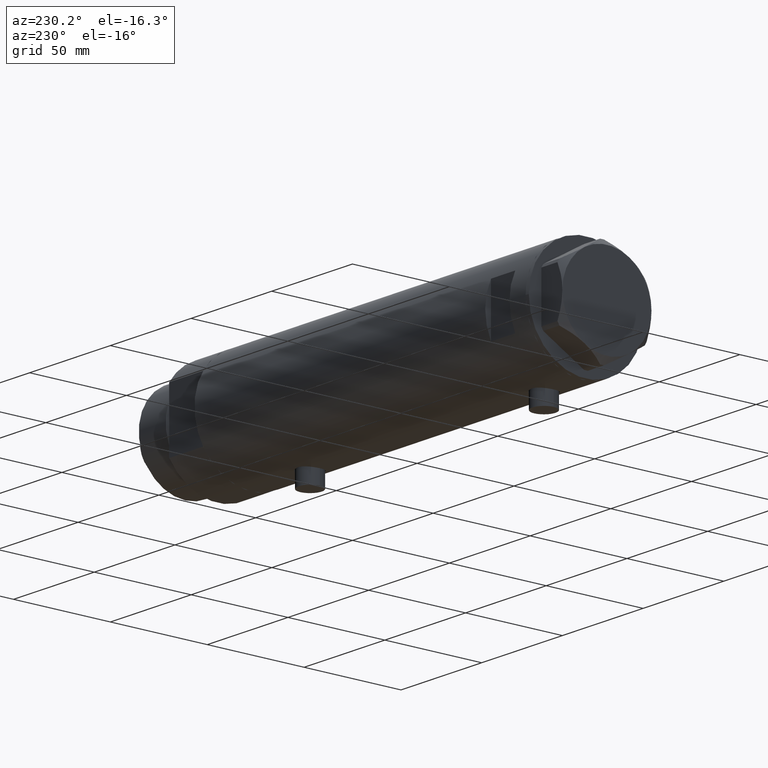
[diagram: clean part render]
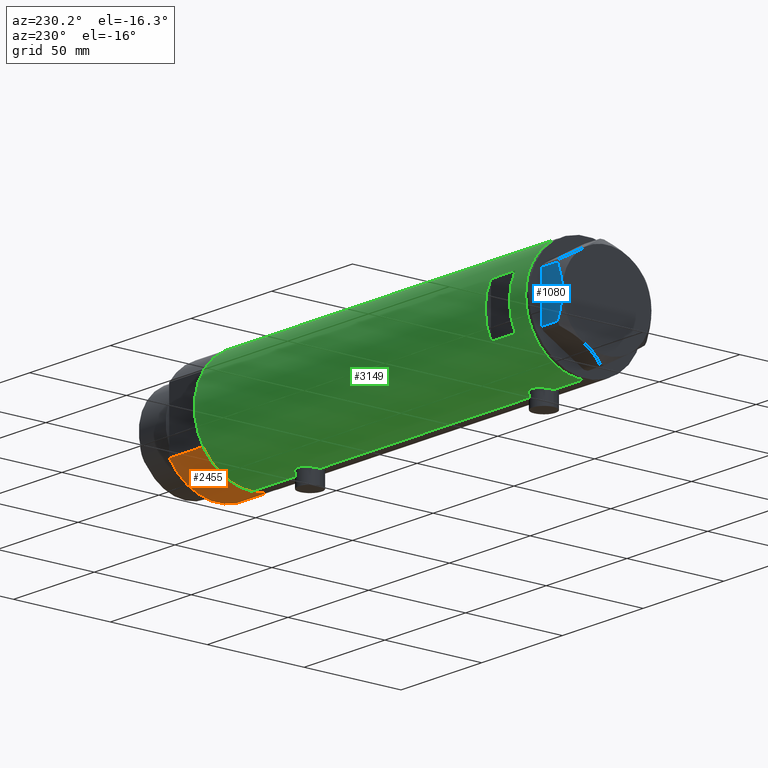
[diagram: same view with three faces highlighted in distinct colors, each labeled with its STEP entity id]
A machine part, auxiliary view with three faces highlighted in distinct colors.
Their STEP definitions:

[orange] entity #2455 — the highlighted cylindrical surface (partial cylindrical patch) has radius 29.5 mm, axis along (-1, -0, 0).
#315 = CARTESIAN_POINT ( 'NONE',  ( 0.000000000000000000, 0.000000000000000000, 21.00000000000000000 ) ) ;
#384 = VERTEX_POINT ( 'NONE', #1085 ) ;
#450 = CARTESIAN_POINT ( 'NONE',  ( 15.66045976336583401, -25.00000000000000000, 0.000000000000000000 ) ) ;
#564 = EDGE_LOOP ( 'NONE', ( #2536, #4182, #4021, #1690 ) ) ;
#572 = VERTEX_POINT ( 'NONE', #2448 ) ;
#680 = VECTOR ( 'NONE', #1843, 1000.000000000000000 ) ;
#830 = VECTOR ( 'NONE', #2635, 1000.000000000000000 ) ;
#859 = CARTESIAN_POINT ( 'NONE',  ( 15.66045976336583045, 24.99999999999999645, 20.99999999999999645 ) ) ;
#877 = EDGE_CURVE ( 'NONE', #384, #1288, #1164, .T. ) ;
#940 = CARTESIAN_POINT ( 'NONE',  ( 0.000000000000000000, 0.000000000000000000, 21.00000000000000000 ) ) ;
#1085 = CARTESIAN_POINT ( 'NONE',  ( 15.66045976336583401, -25.00000000000000000, 0.000000000000000000 ) ) ;
#1164 = LINE ( 'NONE', #450, #680 ) ;
#1198 = CIRCLE ( 'NONE', #1783, 29.50000000000000355 ) ;
#1235 = EDGE_CURVE ( 'NONE', #572, #2620, #4053, .T. ) ;
#1288 = VERTEX_POINT ( 'NONE', #3491 ) ;
#1325 = DIRECTION ( 'NONE',  ( 1.000000000000000000, 0.000000000000000000, 0.000000000000000000 ) ) ;
#1690 = ORIENTED_EDGE ( 'NONE', *, *, #1235, .T. ) ;
#1696 = DIRECTION ( 'NONE',  ( -0.000000000000000000, -0.000000000000000000, -1.000000000000000000 ) ) ;
#1714 = DIRECTION ( 'NONE',  ( 0.000000000000000000, 0.000000000000000000, 1.000000000000000000 ) ) ;
#1783 = AXIS2_PLACEMENT_3D ( 'NONE', #940, #1714, #2005 ) ;
#1843 = DIRECTION ( 'NONE',  ( -0.000000000000000000, -0.000000000000000000, 1.000000000000000000 ) ) ;
#2005 = DIRECTION ( 'NONE',  ( 1.000000000000000000, 0.000000000000000000, 0.000000000000000000 ) ) ;
#2032 = FACE_OUTER_BOUND ( 'NONE', #564, .T. ) ;
#2309 = EDGE_CURVE ( 'NONE', #384, #572, #3868, .T. ) ;
#2323 = CARTESIAN_POINT ( 'NONE',  ( 15.66045976336583401, 25.00000000000000000, 0.000000000000000000 ) ) ;
#2448 = CARTESIAN_POINT ( 'NONE',  ( 15.66045976336582690, 25.00000000000000000, 0.000000000000000000 ) ) ;
#2455 = ADVANCED_FACE ( 'NONE', ( #2032 ), #3426, .T. ) ;
#2536 = ORIENTED_EDGE ( 'NONE', *, *, #3466, .F. ) ;
#2620 = VERTEX_POINT ( 'NONE', #859 ) ;
#2635 = DIRECTION ( 'NONE',  ( -0.000000000000000000, -0.000000000000000000, 1.000000000000000000 ) ) ;
#3046 = CARTESIAN_POINT ( 'NONE',  ( 0.000000000000000000, 0.000000000000000000, 0.000000000000000000 ) ) ;
#3426 = CYLINDRICAL_SURFACE ( 'NONE', #4153, 29.50000000000000355 ) ;
#3448 = DIRECTION ( 'NONE',  ( -1.000000000000000000, 0.000000000000000000, 0.000000000000000000 ) ) ;
#3466 = EDGE_CURVE ( 'NONE', #1288, #2620, #1198, .T. ) ;
#3491 = CARTESIAN_POINT ( 'NONE',  ( 15.66045976336583045, -25.00000000000000000, 21.00000000000000355 ) ) ;
#3868 = CIRCLE ( 'NONE', #4290, 29.50000000000000355 ) ;
#4021 = ORIENTED_EDGE ( 'NONE', *, *, #2309, .T. ) ;
#4053 = LINE ( 'NONE', #2323, #830 ) ;
#4153 = AXIS2_PLACEMENT_3D ( 'NONE', #315, #1696, #3448 ) ;
#4182 = ORIENTED_EDGE ( 'NONE', *, *, #877, .F. ) ;
#4290 = AXIS2_PLACEMENT_3D ( 'NONE', #3046, #4433, #1325 ) ;
#4433 = DIRECTION ( 'NONE',  ( 0.000000000000000000, 0.000000000000000000, 1.000000000000000000 ) ) ;

[blue] entity #1080 — the highlighted planar face has unit normal (0, -1, 0).
#98 = PLANE ( 'NONE',  #2196 ) ;
#129 = VERTEX_POINT ( 'NONE', #1114 ) ;
#144 = CARTESIAN_POINT ( 'NONE',  ( 22.99999999999995026, 2.373657066004705010E-13, 13.00000000000000000 ) ) ;
#150 = ORIENTED_EDGE ( 'NONE', *, *, #945, .T. ) ;
#161 = CARTESIAN_POINT ( 'NONE',  ( 23.00000000000003197, -8.246028007352199651, 11.57113180864690705 ) ) ;
#272 = CARTESIAN_POINT ( 'NONE',  ( 22.99999999999982236, 12.15905619136166038, 9.983800287807609308 ) ) ;
#338 = CARTESIAN_POINT ( 'NONE',  ( 22.99999999999992539, 2.119709279062088836, 12.90853521217320043 ) ) ;
#390 = ORIENTED_EDGE ( 'NONE', *, *, #3375, .T. ) ;
#394 = VECTOR ( 'NONE', #2729, 1000.000000000000000 ) ;
#471 = CARTESIAN_POINT ( 'NONE',  ( 23.00000000000002132, -7.239756182922042704, 11.89218606342284978 ) ) ;
#485 = CARTESIAN_POINT ( 'NONE',  ( 23.00000000000007461, -12.15905619136117721, 0.000000000000000000 ) ) ;
#585 = LINE ( 'NONE', #4033, #3446 ) ;
#604 = DIRECTION ( 'NONE',  ( 0.000000000000000000, 0.000000000000000000, 1.000000000000000000 ) ) ;
#636 = CARTESIAN_POINT ( 'NONE',  ( 22.99999999999995026, 2.373657066004705010E-13, 13.00000000000000000 ) ) ;
#671 = LINE ( 'NONE', #2123, #1261 ) ;
#705 = ORIENTED_EDGE ( 'NONE', *, *, #1073, .F. ) ;
#777 = CARTESIAN_POINT ( 'NONE',  ( 22.99999999999995026, 2.373657066004705010E-13, 13.00000000000000000 ) ) ;
#865 = VERTEX_POINT ( 'NONE', #777 ) ;
#945 = EDGE_CURVE ( 'NONE', #1837, #129, #671, .T. ) ;
#1066 = CARTESIAN_POINT ( 'NONE',  ( 22.99999999999986500, 8.252113629125442884, 11.58164206268022056 ) ) ;
#1073 = EDGE_CURVE ( 'NONE', #1320, #865, #3781, .T. ) ;
#1080 = ADVANCED_FACE ( 'NONE', ( #1453 ), #98, .F. ) ;
#1114 = CARTESIAN_POINT ( 'NONE',  ( 22.99999999999982236, 12.15905619136166571, 0.000000000000000000 ) ) ;
#1129 = EDGE_CURVE ( 'NONE', #129, #2223, #585, .T. ) ;
#1159 = CARTESIAN_POINT ( 'NONE',  ( 23.00000000000007461, -12.15905619136117544, 9.983800287807614637 ) ) ;
#1261 = VECTOR ( 'NONE', #4128, 1000.000000000000000 ) ;
#1313 = EDGE_LOOP ( 'NONE', ( #705, #390, #150, #3099, #2242 ) ) ;
#1320 = VERTEX_POINT ( 'NONE', #2725 ) ;
#1326 = CARTESIAN_POINT ( 'NONE',  ( 22.99999999999985434, 9.734726261263476843, 11.02892470009566139 ) ) ;
#1361 = LINE ( 'NONE', #2678, #394 ) ;
#1453 = FACE_OUTER_BOUND ( 'NONE', #1313, .T. ) ;
#1507 = CARTESIAN_POINT ( 'NONE',  ( 23.00000000000004263, -8.748091966971225375, 11.39681897828457124 ) ) ;
#1538 = CARTESIAN_POINT ( 'NONE',  ( 23.00000000000001421, -6.734330413511261604, 12.03938974125266448 ) ) ;
#1657 = CARTESIAN_POINT ( 'NONE',  ( 22.99999999999992184, 2.643615312305319875, 12.85430456063626714 ) ) ;
#1677 = CARTESIAN_POINT ( 'NONE',  ( 22.99999999999993960, 1.063773509315898647, 12.98143808360683060 ) ) ;
#1724 = CARTESIAN_POINT ( 'NONE',  ( 22.99999999999982236, 12.15905619136166038, 9.983800287807609308 ) ) ;
#1746 = CARTESIAN_POINT ( 'NONE',  ( 22.99999999999982947, 11.68282849742354301, 10.20637235269540888 ) ) ;
#1837 = VERTEX_POINT ( 'NONE', #485 ) ;
#1909 = B_SPLINE_CURVE_WITH_KNOTS ( 'NONE', 3,
 ( #636, #2017, #1677, #338, #1657, #3472, #2033, #4434, #1066, #1326, #2080, #3449, #1746, #1724 ),
 .UNSPECIFIED., .F., .F.,
 ( 4, 2, 2, 2, 2, 2, 4 ),
 ( 0.04777139595992689614, 0.04934380568070229761, 0.05091621540147769215, 0.05406103484302849510, 0.05720585428457929111, 0.05877826400535468565, 0.06035067372613008713 ),
 .UNSPECIFIED. ) ;
#2017 = CARTESIAN_POINT ( 'NONE',  ( 22.99999999999994671, 0.5295934231899315225, 13.00000000000009770 ) ) ;
#2033 = CARTESIAN_POINT ( 'NONE',  ( 22.99999999999990052, 5.228918809624289565, 12.43333703384985256 ) ) ;
#2080 = CARTESIAN_POINT ( 'NONE',  ( 22.99999999999984723, 10.22738952213813590, 10.83247031367476687 ) ) ;
#2123 = CARTESIAN_POINT ( 'NONE',  ( 23.00000000000008527, -13.27905619136115867, 0.000000000000000000 ) ) ;
#2168 = CARTESIAN_POINT ( 'NONE',  ( 22.99999999999999289, -4.194757081058820170, 12.70300035152520479 ) ) ;
#2196 = AXIS2_PLACEMENT_3D ( 'NONE', #2824, #2847, #4236 ) ;
#2223 = VERTEX_POINT ( 'NONE', #272 ) ;
#2242 = ORIENTED_EDGE ( 'NONE', *, *, #4067, .F. ) ;
#2678 = CARTESIAN_POINT ( 'NONE',  ( 23.00000000000007461, -12.15905619136117721, 13.00000000000000000 ) ) ;
#2725 = CARTESIAN_POINT ( 'NONE',  ( 23.00000000000007461, -12.15905619136117544, 9.983800287807614637 ) ) ;
#2729 = DIRECTION ( 'NONE',  ( 0.000000000000000000, 0.000000000000000000, -1.000000000000000000 ) ) ;
#2824 = CARTESIAN_POINT ( 'NONE',  ( 23.00000000000008527, -13.27905619136115867, 13.00000000000000000 ) ) ;
#2847 = DIRECTION ( 'NONE',  ( -1.000000000000000000, -1.032024811306395780E-14, 0.000000000000000000 ) ) ;
#2908 = CARTESIAN_POINT ( 'NONE',  ( 22.99999999999996447, -2.122900714017910584, 13.00000000000008882 ) ) ;
#3099 = ORIENTED_EDGE ( 'NONE', *, *, #1129, .T. ) ;
#3265 = CARTESIAN_POINT ( 'NONE',  ( 23.00000000000006750, -11.20825071633899483, 10.42817330637845608 ) ) ;
#3375 = EDGE_CURVE ( 'NONE', #1320, #1837, #1361, .T. ) ;
#3446 = VECTOR ( 'NONE', #604, 1000.000000000000000 ) ;
#3449 = CARTESIAN_POINT ( 'NONE',  ( 22.99999999999984368, 11.20155944044835472, 10.42110268263274264 ) ) ;
#3472 = CARTESIAN_POINT ( 'NONE',  ( 22.99999999999990763, 4.203926054642130872, 12.64168122312251263 ) ) ;
#3781 = B_SPLINE_CURVE_WITH_KNOTS ( 'NONE', 3,
 ( #1159, #3265, #3918, #1507, #161, #471, #1538, #2168, #2908, #144 ),
 .UNSPECIFIED., .F., .F.,
 ( 4, 2, 2, 2, 4 ),
 ( 0.03516523594057416324, 0.03831677594541234994, 0.03989254594783143981, 0.04146831595025052969, 0.04777139595992689614 ),
 .UNSPECIFIED. ) ;
#3918 = CARTESIAN_POINT ( 'NONE',  ( 23.00000000000005684, -10.23890159976106240, 10.84081242829091529 ) ) ;
#4033 = CARTESIAN_POINT ( 'NONE',  ( 22.99999999999982236, 12.15905619136166571, 13.00000000000000000 ) ) ;
#4067 = EDGE_CURVE ( 'NONE', #865, #2223, #1909, .T. ) ;
#4128 = DIRECTION ( 'NONE',  ( -1.032024811306395780E-14, 1.000000000000000000, 0.000000000000000000 ) ) ;
#4236 = DIRECTION ( 'NONE',  ( 1.032024811306395780E-14, -1.000000000000000000, 0.000000000000000000 ) ) ;
#4434 = CARTESIAN_POINT ( 'NONE',  ( 22.99999999999987210, 7.253003311474555126, 11.90327681034763430 ) ) ;

[green] entity #3149 — the highlighted cylindrical surface (partial cylindrical patch) has radius 29.5 mm, axis along (-1, -0, 0).
#12 = CARTESIAN_POINT ( 'NONE',  ( -29.49128627113591250, 0.8212788586050389084, -60.09076875091125913 ) ) ;
#31 = CARTESIAN_POINT ( 'NONE',  ( -29.50000000000001066, 0.4142160563134688056, -60.05000000000000426 ) ) ;
#46 = AXIS2_PLACEMENT_3D ( 'NONE', #335, #3469, #2700 ) ;
#47 = CARTESIAN_POINT ( 'NONE',  ( -29.50000000000000355, 3.612708057484692393E-15, -102.5999999999999943 ) ) ;
#56 = CARTESIAN_POINT ( 'NONE',  ( -29.25454443288368722, 3.812919888526645096, -61.33102620819089168 ) ) ;
#58 = CARTESIAN_POINT ( 'NONE',  ( 29.50000000000000355, -1.919926123348039602E-15, -70.89999999999999147 ) ) ;
#63 = CARTESIAN_POINT ( 'NONE',  ( 29.08204711695422162, 4.951923910293533737, 76.46183978405699122 ) ) ;
#65 = VERTEX_POINT ( 'NONE', #2863 ) ;
#69 = CARTESIAN_POINT ( 'NONE',  ( -29.50000000000000355, 3.612706708236066082E-15, 72.34999999999999432 ) ) ;
#81 = CYLINDRICAL_SURFACE ( 'NONE', #2563, 29.50000000000000355 ) ;
#82 = ORIENTED_EDGE ( 'NONE', *, *, #963, .F. ) ;
#106 = EDGE_CURVE ( 'NONE', #3203, #3604, #3562, .T. ) ;
#107 = ORIENTED_EDGE ( 'NONE', *, *, #886, .F. ) ;
#146 = CARTESIAN_POINT ( 'NONE',  ( 29.38138226830142941, 2.652609128011945039, -70.41954601959669446 ) ) ;
#163 = CARTESIAN_POINT ( 'NONE',  ( 29.08308069045667565, 4.954707331652131508, -57.74826371623223764 ) ) ;
#188 = CARTESIAN_POINT ( 'NONE',  ( 28.62953349941190595, 7.116010646391501382, 84.51979460923098486 ) ) ;
#192 = EDGE_CURVE ( 'NONE', #4181, #426, #3943, .T. ) ;
#208 = CARTESIAN_POINT ( 'NONE',  ( -28.99931529802531571, 5.412890550536858747, 75.46870800944782331 ) ) ;
#218 = LINE ( 'NONE', #3616, #2263 ) ;
#230 = CARTESIAN_POINT ( 'NONE',  ( 28.54350045195476326, 7.451747857568912004, 81.11733997124495943 ) ) ;
#231 = CARTESIAN_POINT ( 'NONE',  ( -29.50000000000000355, 0.2042768310961497746, 72.34999999999999432 ) ) ;
#253 = CARTESIAN_POINT ( 'NONE',  ( -28.83925158138407596, 6.209208576703536764, 77.77801617131194689 ) ) ;
#258 = CIRCLE ( 'NONE', #620, 29.50000000000000355 ) ;
#266 = EDGE_CURVE ( 'NONE', #516, #3559, #2093, .T. ) ;
#279 = CARTESIAN_POINT ( 'NONE',  ( 28.86328010881651807, 6.097564286278117862, 86.47368290922693745 ) ) ;
#280 = CARTESIAN_POINT ( 'NONE',  ( -28.94521404191312541, 5.694822755760260868, 76.01666953598657983 ) ) ;
#301 = CARTESIAN_POINT ( 'NONE',  ( -28.96085629491408753, 5.616414220648533018, 81.37199639590008360 ) ) ;
#320 = VECTOR ( 'NONE', #3672, 1000.000000000000000 ) ;
#335 = CARTESIAN_POINT ( 'NONE',  ( 0.000000000000000000, 0.000000000000000000, 77.60000000000007958 ) ) ;
#340 = CARTESIAN_POINT ( 'NONE',  ( 29.50000000000000355, -1.919926123348039602E-15, -70.89999999999999147 ) ) ;
#342 = CARTESIAN_POINT ( 'NONE',  ( -28.83028740688047975, 6.250162243045993549, -66.70646065908374567 ) ) ;
#356 = DIRECTION ( 'NONE',  ( 0.000000000000000000, 0.000000000000000000, 1.000000000000000000 ) ) ;
#363 = CARTESIAN_POINT ( 'NONE',  ( -29.38727827406290416, 2.583363936682816941, -71.99478026128666386 ) ) ;
#364 = CARTESIAN_POINT ( 'NONE',  ( 29.50000000000000355, 0.000000000000000000, -102.5999999999999943 ) ) ;
#381 = CARTESIAN_POINT ( 'NONE',  ( -28.86473101544357434, 6.089252369705498324, -64.87667050833967153 ) ) ;
#404 = CARTESIAN_POINT ( 'NONE',  ( -29.21113960567727830, 4.128622307952528381, -71.01014533383553839 ) ) ;
#410 = CARTESIAN_POINT ( 'NONE',  ( 29.14416130131008131, 4.572185141625607407, 76.14974588234440489 ) ) ;
#426 = VERTEX_POINT ( 'NONE', #986 ) ;
#433 = B_SPLINE_CURVE_WITH_KNOTS ( 'NONE', 3,
 ( #1749, #31, #12, #1703, #1404, #2382, #722, #2102, #1333, #56, #701, #1002, #2776, #3100, #1043, #2038, #1091, #1382, #381, #4468, #2752, #342, #1432, #3762, #4107, #3516, #2058, #4438, #3475, #2801, #2464, #404, #3430, #1799, #3078, #1364, #363, #1021, #3878, #3968, #2514, #1140, #446, #3903 ),
 .UNSPECIFIED., .F., .F.,
 ( 4, 2, 2, 2, 2, 2, 2, 2, 2, 2, 2, 2, 2, 2, 2, 2, 2, 2, 2, 2, 2, 4 ),
 ( 1.544559621223092988E-18, 0.001224749128302355305, 0.001837123692453529597, 0.002449498256604704972, 0.003674247384907053989, 0.004898996513209403873, 0.006123745641511752456, 0.007348494769814101907, 0.007960869333965277933, 0.008573243898116452225, 0.009797993026418759174, 0.01102274215472106959, 0.01224749128302338001, 0.01285986584717451614, 0.01347224041132565053, 0.01469698953962795575, 0.01592173866793026096, 0.01653411323208141270, 0.01714648779623256791, 0.01837123692453485752, 0.01898361148868599538, 0.01959598605283713324 ),
 .UNSPECIFIED. ) ;
#439 = ORIENTED_EDGE ( 'NONE', *, *, #1342, .T. ) ;
#446 = CARTESIAN_POINT ( 'NONE',  ( -29.50000000000000711, 0.2042768310961464717, -72.55000000000001137 ) ) ;
#465 = VERTEX_POINT ( 'NONE', #488 ) ;
#474 = CARTESIAN_POINT ( 'NONE',  ( 28.95590528945748687, 5.641861744747099117, -58.45235088071115115 ) ) ;
#488 = CARTESIAN_POINT ( 'NONE',  ( 29.50000000000000355, -2.245054425791785664E-15, 74.59999999999996589 ) ) ;
#496 = CARTESIAN_POINT ( 'NONE',  ( 28.77473834757381965, 6.507156404236271285, -67.16162684060294907 ) ) ;
#509 = DIRECTION ( 'NONE',  ( 0.000000000000000000, 0.000000000000000000, 1.000000000000000000 ) ) ;
#516 = VERTEX_POINT ( 'NONE', #1216 ) ;
#544 = ORIENTED_EDGE ( 'NONE', *, *, #4138, .F. ) ;
#546 = CARTESIAN_POINT ( 'NONE',  ( -29.46640581083894261, 1.421634556901802293, 84.68958891089420149 ) ) ;
#570 = CARTESIAN_POINT ( 'NONE',  ( 28.58083212642745607, 7.306745240314161727, 80.39046330563790832 ) ) ;
#571 = CARTESIAN_POINT ( 'NONE',  ( -28.89816269917384872, 5.930588606439751054, 76.58529684457830911 ) ) ;
#590 = CARTESIAN_POINT ( 'NONE',  ( -29.49128627113591250, 0.8212788586050364659, 84.80923124908873945 ) ) ;
#593 = VERTEX_POINT ( 'NONE', #4149 ) ;
#613 = CARTESIAN_POINT ( 'NONE',  ( -29.21045586191521082, 4.133246019522336390, 83.30573901566482675 ) ) ;
#620 = AXIS2_PLACEMENT_3D ( 'NONE', #4066, #1712, #962 ) ;
#639 = CARTESIAN_POINT ( 'NONE',  ( -28.87539346372184923, 6.038655803256915533, 80.22452664083073159 ) ) ;
#660 = CARTESIAN_POINT ( 'NONE',  ( 28.95615051861771860, 5.649234316505064690, 77.14284581253269835 ) ) ;
#701 = CARTESIAN_POINT ( 'NONE',  ( -29.21045586191520727, 4.133246019522343495, -61.59426098433517183 ) ) ;
#703 = B_SPLINE_CURVE_WITH_KNOTS ( 'NONE', 3,
 ( #58, #1434, #2487, #3882, #2910, #3245, #146, #2890, #3628, #3217, #1142, #1903, #3267, #4296, #1508, #496, #1178, #4278, #2515, #1819, #4261, #1477, #793, #2170, #2875, #2532, #3919, #2550, #813, #2189, #3941, #1540, #3583, #474, #841, #163, #1204, #760, #3166, #1760, #1375, #3113, #1395, #2477, #1032, #2505 ),
 .UNSPECIFIED., .F., .F.,
 ( 4, 2, 2, 2, 2, 2, 2, 2, 2, 2, 2, 2, 2, 2, 2, 2, 2, 2, 2, 2, 2, 2, 4 ),
 ( 1.864675043653717125E-18, 0.001471587963626201515, 0.002207381945439296743, 0.002943175927252393055, 0.004414763890878584812, 0.005150557872691693267, 0.005886351854504800855, 0.007357939818130984806, 0.008829527781757167890, 0.009565321763570278080, 0.01030111574538338827, 0.01177270370900956875, 0.01324429167263575097, 0.01471587963626193492, 0.01545167361807502603, 0.01618746759988811887, 0.01692326158170120998, 0.01765905556351430108, 0.01913064352714050065, 0.02060223149076670021, 0.02207381945439289977, 0.02280961343620599782, 0.02354540741801909587 ),
 .UNSPECIFIED. ) ;
#711 = ORIENTED_EDGE ( 'NONE', *, *, #3599, .F. ) ;
#722 = CARTESIAN_POINT ( 'NONE',  ( -29.41782704931130965, 2.208494778271269166, -60.44961702072825460 ) ) ;
#723 = CARTESIAN_POINT ( 'NONE',  ( -29.50000000000000355, 3.612708057484692393E-15, -102.5999999999999943 ) ) ;
#724 = DIRECTION ( 'NONE',  ( 1.000000000000000000, 0.000000000000000000, 0.000000000000000000 ) ) ;
#726 = CARTESIAN_POINT ( 'NONE',  ( 29.48742029994219749, 0.9867701249543477937, 74.64905492505776863 ) ) ;
#748 = VECTOR ( 'NONE', #2516, 1000.000000000000000 ) ;
#760 = CARTESIAN_POINT ( 'NONE',  ( 29.26131531204079295, 3.767377415172556088, -56.89654697428867536 ) ) ;
#793 = CARTESIAN_POINT ( 'NONE',  ( 28.53073993742369652, 7.499791908386163719, -63.89461948433038430 ) ) ;
#813 = CARTESIAN_POINT ( 'NONE',  ( 28.72322018454529413, 6.726124749058835839, -60.07293147148995871 ) ) ;
#841 = CARTESIAN_POINT ( 'NONE',  ( 28.98787507734747848, 5.475789924529805397, -58.26910956623372329 ) ) ;
#886 = EDGE_CURVE ( 'NONE', #3203, #1877, #4369, .T. ) ;
#914 = CARTESIAN_POINT ( 'NONE',  ( -29.50000000000000355, 3.612706708236066082E-15, 72.34999999999999432 ) ) ;
#933 = ORIENTED_EDGE ( 'NONE', *, *, #1468, .F. ) ;
#953 = CARTESIAN_POINT ( 'NONE',  ( 28.77649569280672992, 6.494415104660927973, 85.85934988816620717 ) ) ;
#954 = CARTESIAN_POINT ( 'NONE',  ( -29.48289442777306846, 1.024392307325220797, 72.43111777471301593 ) ) ;
#962 = DIRECTION ( 'NONE',  ( 1.000000000000000000, 0.000000000000000000, 0.000000000000000000 ) ) ;
#963 = EDGE_CURVE ( 'NONE', #4175, #3559, #433, .T. ) ;
#986 = CARTESIAN_POINT ( 'NONE',  ( 12.96148139681571898, 26.50000000000000355, 77.59999999999999432 ) ) ;
#1001 = CARTESIAN_POINT ( 'NONE',  ( 29.49693976195335665, 0.4910732786937767047, 89.58799094295622467 ) ) ;
#1002 = CARTESIAN_POINT ( 'NONE',  ( -29.12335997091253503, 4.707903814166473744, -62.16921992621198712 ) ) ;
#1005 = CARTESIAN_POINT ( 'NONE',  ( 29.05056090758568388, 5.132790299589563787, 76.62608273347910881 ) ) ;
#1021 = CARTESIAN_POINT ( 'NONE',  ( -29.43341305963176424, 2.016871341298205778, -72.22974668998810444 ) ) ;
#1032 = CARTESIAN_POINT ( 'NONE',  ( 29.50000000000000711, 0.2453482418156860689, -55.89999999999997726 ) ) ;
#1042 = CARTESIAN_POINT ( 'NONE',  ( 29.47533087885488712, 1.230190383163952461, 89.50252131767058472 ) ) ;
#1043 = CARTESIAN_POINT ( 'NONE',  ( -28.96085629491410174, 5.616414220648542788, -63.52800360409993630 ) ) ;
#1051 = CARTESIAN_POINT ( 'NONE',  ( 29.50000000000000355, -2.245054425791785664E-15, 74.59999999999996589 ) ) ;
#1074 = FACE_BOUND ( 'NONE', #1598, .T. ) ;
#1082 = VERTEX_POINT ( 'NONE', #1838 ) ;
#1091 = CARTESIAN_POINT ( 'NONE',  ( -28.90008889585329044, 5.919338933253952106, -64.28359792941949991 ) ) ;
#1108 = ORIENTED_EDGE ( 'NONE', *, *, #3238, .F. ) ;
#1125 = DIRECTION ( 'NONE',  ( 0.000000000000000000, 0.000000000000000000, 1.000000000000000000 ) ) ;
#1133 = CARTESIAN_POINT ( 'NONE',  ( 29.50000000000000355, -8.867907290838723877E-21, 89.59999999999998010 ) ) ;
#1140 = CARTESIAN_POINT ( 'NONE',  ( -29.49787850362430675, 0.4089683628077620536, -72.54001026437018140 ) ) ;
#1142 = CARTESIAN_POINT ( 'NONE',  ( 29.14416130131008131, 4.572185141625607407, -69.35025411765555248 ) ) ;
#1146 = CARTESIAN_POINT ( 'NONE',  ( -29.50000000000000355, -5.649958391113855330E-16, 84.85000000000000853 ) ) ;
#1171 = LINE ( 'NONE', #4250, #1852 ) ;
#1178 = CARTESIAN_POINT ( 'NONE',  ( 28.72066933684368095, 6.738715173607859654, -66.72836955953552263 ) ) ;
#1182 = ORIENTED_EDGE ( 'NONE', *, *, #192, .F. ) ;
#1204 = CARTESIAN_POINT ( 'NONE',  ( 29.14546206473280066, 4.578181670952603532, -57.43943908396705211 ) ) ;
#1216 = CARTESIAN_POINT ( 'NONE',  ( -29.50000000000000355, 3.612708057484692393E-15, -102.5999999999999943 ) ) ;
#1241 = CARTESIAN_POINT ( 'NONE',  ( 12.96148139681573319, 26.49999999999999645, -102.5999999999999943 ) ) ;
#1246 = CARTESIAN_POINT ( 'NONE',  ( 28.59637095282950980, 7.245897747848937698, 80.14872625722385635 ) ) ;
#1247 = CARTESIAN_POINT ( 'NONE',  ( -29.25435602127558354, 3.814249285079243101, 73.63216270466006108 ) ) ;
#1272 = CARTESIAN_POINT ( 'NONE',  ( 28.59328333056173221, 7.258376466535483296, 84.05124667484830070 ) ) ;
#1273 = CARTESIAN_POINT ( 'NONE',  ( -29.43341305963176069, 2.016871341298213771, 72.67025331001197230 ) ) ;
#1290 = CARTESIAN_POINT ( 'NONE',  ( -29.38727827406289705, 2.583363936682820494, 72.90521973871332762 ) ) ;
#1295 = ORIENTED_EDGE ( 'NONE', *, *, #266, .T. ) ;
#1312 = CARTESIAN_POINT ( 'NONE',  ( -28.83028740688046554, 6.250162243045982891, 78.19353934091624581 ) ) ;
#1314 = EDGE_CURVE ( 'NONE', #426, #1082, #4231, .T. ) ;
#1333 = CARTESIAN_POINT ( 'NONE',  ( -29.33500454540941149, 3.134363790739244759, -60.87737865536320214 ) ) ;
#1342 = EDGE_CURVE ( 'NONE', #4175, #1877, #3447, .T. ) ;
#1364 = CARTESIAN_POINT ( 'NONE',  ( -29.37021410611214023, 2.770135525807584820, -71.90634069022830488 ) ) ;
#1366 = CARTESIAN_POINT ( 'NONE',  ( 29.45150476095192360, 1.707859807438206312, 74.79292881343936017 ) ) ;
#1375 = CARTESIAN_POINT ( 'NONE',  ( 29.43913092143245791, 1.954882548385554752, -56.14250765266647392 ) ) ;
#1381 = CARTESIAN_POINT ( 'NONE',  ( 29.31521205951408504, 3.327945423969218108, 88.83906509227087156 ) ) ;
#1382 = CARTESIAN_POINT ( 'NONE',  ( -28.87539346372185278, 6.038655803256923527, -64.67547335916927409 ) ) ;
#1395 = CARTESIAN_POINT ( 'NONE',  ( 29.48463566286631021, 0.9832945201638386701, -55.96062548237702572 ) ) ;
#1404 = CARTESIAN_POINT ( 'NONE',  ( -29.45614208737133666, 1.620034288692377089, -60.26011356088387316 ) ) ;
#1413 = CARTESIAN_POINT ( 'NONE',  ( 29.50000000000000355, 0.4977435627019816122, 74.59999999999996589 ) ) ;
#1432 = CARTESIAN_POINT ( 'NONE',  ( -28.83925158138408307, 6.209208576703545646, -67.12198382868808721 ) ) ;
#1434 = CARTESIAN_POINT ( 'NONE',  ( 29.50000000000000711, 0.4977435627019816122, -70.90000000000000568 ) ) ;
#1458 = CARTESIAN_POINT ( 'NONE',  ( 0.000000000000000000, 0.000000000000000000, -102.5999999999999943 ) ) ;
#1468 = EDGE_CURVE ( 'NONE', #4301, #3604, #1630, .T. ) ;
#1471 = DIRECTION ( 'NONE',  ( 1.000000000000000000, 0.000000000000000000, 0.000000000000000000 ) ) ;
#1477 = CARTESIAN_POINT ( 'NONE',  ( 28.54350045195477037, 7.451747857568912892, -64.38266002875499794 ) ) ;
#1483 = CARTESIAN_POINT ( 'NONE',  ( -29.50000000000000355, 3.612706708267620518E-15, -72.54999999999999716 ) ) ;
#1508 = CARTESIAN_POINT ( 'NONE',  ( 28.89325003604224662, 5.958922200807249325, -67.98084786495518017 ) ) ;
#1540 = CARTESIAN_POINT ( 'NONE',  ( 28.86328010881652162, 6.097564286278117862, -59.02631709077300570 ) ) ;
#1547 = VERTEX_POINT ( 'NONE', #1133 ) ;
#1594 = CARTESIAN_POINT ( 'NONE',  ( -29.12335997091253148, 4.707903814166463086, 82.73078007378803989 ) ) ;
#1598 = EDGE_LOOP ( 'NONE', ( #3871, #2517, #1182, #3417 ) ) ;
#1630 = CIRCLE ( 'NONE', #2199, 29.50000000000000355 ) ;
#1642 = CARTESIAN_POINT ( 'NONE',  ( -29.12318177724206691, 4.709191267490246524, 74.47028949758346528 ) ) ;
#1660 = ORIENTED_EDGE ( 'NONE', *, *, #4241, .F. ) ;
#1703 = CARTESIAN_POINT ( 'NONE',  ( -29.46640581083894617, 1.421634556901805624, -60.21041108910579709 ) ) ;
#1712 = DIRECTION ( 'NONE',  ( 0.000000000000000000, 0.000000000000000000, 1.000000000000000000 ) ) ;
#1749 = CARTESIAN_POINT ( 'NONE',  ( -29.50000000000000355, -1.590035304987910071E-15, -60.04999999999999005 ) ) ;
#1751 = CARTESIAN_POINT ( 'NONE',  ( 29.40165444879503909, 2.418426732012825653, 74.99632943565211463 ) ) ;
#1758 = CARTESIAN_POINT ( 'NONE',  ( 29.50000000000000355, -8.867907290838723877E-21, -55.89999999999997016 ) ) ;
#1760 = CARTESIAN_POINT ( 'NONE',  ( 29.40387556522357571, 2.422597899785631004, -56.28513960230166191 ) ) ;
#1767 = CARTESIAN_POINT ( 'NONE',  ( 29.50000000000000355, 0.2453482418156857914, 89.59999999999998010 ) ) ;
#1769 = CARTESIAN_POINT ( 'NONE',  ( 29.50000000000000355, 0.000000000000000000, 102.5999999999999943 ) ) ;
#1799 = CARTESIAN_POINT ( 'NONE',  ( -29.31451746246149881, 3.307268797680013250, -71.60714841985003432 ) ) ;
#1802 = FACE_OUTER_BOUND ( 'NONE', #3498, .T. ) ;
#1819 = CARTESIAN_POINT ( 'NONE',  ( 28.59637095282949559, 7.245897747848937698, -65.35127374277608681 ) ) ;
#1838 = CARTESIAN_POINT ( 'NONE',  ( -12.96148139681574030, 26.50000000000000355, 77.59999999999999432 ) ) ;
#1852 = VECTOR ( 'NONE', #1125, 1000.000000000000000 ) ;
#1877 = VERTEX_POINT ( 'NONE', #69 ) ;
#1903 = CARTESIAN_POINT ( 'NONE',  ( 29.08204711695421807, 4.951923910293536402, -69.03816021594296615 ) ) ;
#1953 = CARTESIAN_POINT ( 'NONE',  ( 28.53063088452981688, 7.500206755597528030, 82.58828856904804638 ) ) ;
#1954 = CARTESIAN_POINT ( 'NONE',  ( -29.33379699751450076, 3.132328395749502725, 73.18767835513888542 ) ) ;
#1971 = CARTESIAN_POINT ( 'NONE',  ( -29.50000000000000711, 0.4142160563134686946, 84.85000000000002274 ) ) ;
#1984 = EDGE_CURVE ( 'NONE', #1082, #593, #218, .T. ) ;
#1996 = CARTESIAN_POINT ( 'NONE',  ( 28.53073993742370362, 7.499791908386164607, 81.60538051566962281 ) ) ;
#1997 = CARTESIAN_POINT ( 'NONE',  ( -28.83909818927743629, 6.209925900742494065, 79.41778075451993857 ) ) ;
#2021 = CARTESIAN_POINT ( 'NONE',  ( -29.41782704931129544, 2.208494778271264725, 84.45038297927173687 ) ) ;
#2038 = CARTESIAN_POINT ( 'NONE',  ( -28.91416466586723999, 5.850419487802257734, -64.09172352366374525 ) ) ;
#2042 = CARTESIAN_POINT ( 'NONE',  ( 28.89325003604223951, 5.958922200807248437, 77.51915213504481983 ) ) ;
#2058 = CARTESIAN_POINT ( 'NONE',  ( -28.96258065965880135, 5.606121065329693565, -69.07051985068761724 ) ) ;
#2070 = EDGE_CURVE ( 'NONE', #65, #516, #258, .T. ) ;
#2093 = LINE ( 'NONE', #47, #3646 ) ;
#2102 = CARTESIAN_POINT ( 'NONE',  ( -29.37156641804198998, 2.775801885207120012, -60.68527430293369207 ) ) ;
#2130 = DIRECTION ( 'NONE',  ( -0.000000000000000000, -0.000000000000000000, -1.000000000000000000 ) ) ;
#2170 = CARTESIAN_POINT ( 'NONE',  ( 28.53063088452981688, 7.500206755597528030, -62.91171143095191098 ) ) ;
#2189 = CARTESIAN_POINT ( 'NONE',  ( 28.77649569280672992, 6.494415104660921756, -59.64065011183374310 ) ) ;
#2199 = AXIS2_PLACEMENT_3D ( 'NONE', #4287, #2883, #1471 ) ;
#2259 = CARTESIAN_POINT ( 'NONE',  ( -29.31451746246149170, 3.307268797680003036, 73.29285158014995716 ) ) ;
#2263 = VECTOR ( 'NONE', #509, 1000.000000000000000 ) ;
#2274 = VECTOR ( 'NONE', #2744, 1000.000000000000000 ) ;
#2306 = CARTESIAN_POINT ( 'NONE',  ( -29.45614208737133310, 1.620034288692375535, 84.63988643911609699 ) ) ;
#2328 = CARTESIAN_POINT ( 'NONE',  ( 28.80468126786725236, 6.368639251981151439, 86.06860510682069787 ) ) ;
#2329 = CARTESIAN_POINT ( 'NONE',  ( -29.50000000000000355, -5.649958391113855330E-16, 84.85000000000000853 ) ) ;
#2353 = VECTOR ( 'NONE', #3587, 1000.000000000000000 ) ;
#2360 = ORIENTED_EDGE ( 'NONE', *, *, #106, .T. ) ;
#2361 = CARTESIAN_POINT ( 'NONE',  ( 28.98787507734748914, 5.475789924529805397, 87.23089043376623408 ) ) ;
#2362 = CARTESIAN_POINT ( 'NONE',  ( -29.43187585711094556, 2.013330896687708815, 84.52040860029107705 ) ) ;
#2382 = CARTESIAN_POINT ( 'NONE',  ( -29.43187585711095622, 2.013330896687711036, -60.37959139970892153 ) ) ;
#2385 = CARTESIAN_POINT ( 'NONE',  ( 29.26187100173484623, 3.763222966830672256, 75.59401741939376507 ) ) ;
#2404 = CARTESIAN_POINT ( 'NONE',  ( 28.63233008736633778, 7.102474189478622968, 79.67814868761111313 ) ) ;
#2421 = CARTESIAN_POINT ( 'NONE',  ( 29.48463566286631377, 0.9832945201638373378, 89.53937451762293165 ) ) ;
#2446 = DIRECTION ( 'NONE',  ( 0.000000000000000000, 0.000000000000000000, 1.000000000000000000 ) ) ;
#2464 = CARTESIAN_POINT ( 'NONE',  ( -29.12318177724206691, 4.709191267490252741, -70.42971050241654041 ) ) ;
#2469 = CARTESIAN_POINT ( 'NONE',  ( 0.000000000000000000, 0.000000000000000000, 92.59999999999999432 ) ) ;
#2473 = ORIENTED_EDGE ( 'NONE', *, *, #4305, .F. ) ;
#2477 = CARTESIAN_POINT ( 'NONE',  ( 29.49693976195337086, 0.4910732786937780925, -55.91200905704373980 ) ) ;
#2487 = CARTESIAN_POINT ( 'NONE',  ( 29.48742029994219749, 0.9867701249543460174, -70.85094507494220295 ) ) ;
#2505 = CARTESIAN_POINT ( 'NONE',  ( 29.50000000000000355, -8.867907290838723877E-21, -55.89999999999997016 ) ) ;
#2514 = CARTESIAN_POINT ( 'NONE',  ( -29.48933702067640539, 0.8192029158410132350, -72.49950722266699188 ) ) ;
#2515 = CARTESIAN_POINT ( 'NONE',  ( 28.63233008736633423, 7.102474189478621192, -65.82185131238887266 ) ) ;
#2516 = DIRECTION ( 'NONE',  ( 0.000000000000000000, 0.000000000000000000, 1.000000000000000000 ) ) ;
#2517 = ORIENTED_EDGE ( 'NONE', *, *, #1314, .F. ) ;
#2532 = CARTESIAN_POINT ( 'NONE',  ( 28.59328333056173577, 7.258376466535483296, -61.44875332515167798 ) ) ;
#2534 = CARTESIAN_POINT ( 'NONE',  ( 29.50000000000000355, 0.000000000000000000, -102.5999999999999943 ) ) ;
#2550 = CARTESIAN_POINT ( 'NONE',  ( 28.69800960089390074, 6.832546664705492212, -60.29724969708691162 ) ) ;
#2563 = AXIS2_PLACEMENT_3D ( 'NONE', #1458, #2446, #724 ) ;
#2571 = VECTOR ( 'NONE', #3521, 1000.000000000000000 ) ;
#2574 = VERTEX_POINT ( 'NONE', #340 ) ;
#2614 = CARTESIAN_POINT ( 'NONE',  ( -29.45783481716065211, 1.627188261681546511, 72.55163589091057474 ) ) ;
#2617 = CARTESIAN_POINT ( 'NONE',  ( -29.50000000000000355, -1.590035304987910071E-15, -60.04999999999999005 ) ) ;
#2661 = CARTESIAN_POINT ( 'NONE',  ( -28.96258065965880846, 5.606121065329690012, 75.82948014931236003 ) ) ;
#2680 = CARTESIAN_POINT ( 'NONE',  ( 28.89369475765812112, 5.952264974793434860, 86.66950516186247455 ) ) ;
#2681 = CARTESIAN_POINT ( 'NONE',  ( -28.83035796536221440, 6.249836767212674005, 79.01143494622722585 ) ) ;
#2700 = DIRECTION ( 'NONE',  ( 0.000000000000000000, 1.000000000000000000, -4.704334850106595203E-15 ) ) ;
#2712 = CARTESIAN_POINT ( 'NONE',  ( 29.17471722935868783, 4.373569479501283830, 76.00231157590984310 ) ) ;
#2736 = CARTESIAN_POINT ( 'NONE',  ( 28.65280969280607337, 7.019670864411701849, 79.44786831316891096 ) ) ;
#2744 = DIRECTION ( 'NONE',  ( 0.000000000000000000, 0.000000000000000000, 1.000000000000000000 ) ) ;
#2751 = CARTESIAN_POINT ( 'NONE',  ( 29.40387556522357571, 2.422597899785628339, 89.21486039769835941 ) ) ;
#2752 = CARTESIAN_POINT ( 'NONE',  ( -28.83035796536222861, 6.249836767212682886, -65.88856505377277983 ) ) ;
#2776 = CARTESIAN_POINT ( 'NONE',  ( -29.07990598238133373, 4.966177878631061304, -62.48314968353489718 ) ) ;
#2801 = CARTESIAN_POINT ( 'NONE',  ( -29.07940225710134285, 4.969011347753395924, -70.11269734470182868 ) ) ;
#2826 = LINE ( 'NONE', #364, #2571 ) ;
#2863 = CARTESIAN_POINT ( 'NONE',  ( 29.50000000000000355, 0.000000000000000000, -102.5999999999999943 ) ) ;
#2875 = CARTESIAN_POINT ( 'NONE',  ( 28.54372006395176697, 7.450900983269902689, -62.41234264364082662 ) ) ;
#2883 = DIRECTION ( 'NONE',  ( 0.000000000000000000, 0.000000000000000000, 1.000000000000000000 ) ) ;
#2890 = CARTESIAN_POINT ( 'NONE',  ( 29.31463363472446204, 3.333180401682688920, -70.13656844683045222 ) ) ;
#2910 = CARTESIAN_POINT ( 'NONE',  ( 29.43668864566816623, 1.946133027943910854, -70.64730912701001841 ) ) ;
#2920 = CIRCLE ( 'NONE', #4372, 29.50000000000000355 ) ;
#2945 = EDGE_CURVE ( 'NONE', #593, #4181, #2920, .T. ) ;
#2961 = CARTESIAN_POINT ( 'NONE',  ( -29.33500454540941149, 3.134363790739238542, 84.02262134463680354 ) ) ;
#2983 = CARTESIAN_POINT ( 'NONE',  ( 12.96148139681573319, 26.49999999999998934, 92.59999999999999432 ) ) ;
#3009 = CARTESIAN_POINT ( 'NONE',  ( -29.07990598238133018, 4.966177878631055975, 82.41685031646510140 ) ) ;
#3034 = CARTESIAN_POINT ( 'NONE',  ( -28.99817753551064570, 5.423057650933436058, 81.73396151462590353 ) ) ;
#3078 = CARTESIAN_POINT ( 'NONE',  ( -29.33379699751450431, 3.132328395749497396, -71.71232164486114868 ) ) ;
#3082 = CARTESIAN_POINT ( 'NONE',  ( 28.77473834757382321, 6.507156404236272174, 78.33837315939700829 ) ) ;
#3100 = CARTESIAN_POINT ( 'NONE',  ( -28.99817753551064925, 5.423057650933444940, -63.16603848537408084 ) ) ;
#3103 = CARTESIAN_POINT ( 'NONE',  ( 29.43668864566816268, 1.946133027943911076, 74.85269087298996737 ) ) ;
#3113 = CARTESIAN_POINT ( 'NONE',  ( 29.47533087885489067, 1.230190383163956458, -55.99747868232939396 ) ) ;
#3125 = CARTESIAN_POINT ( 'NONE',  ( 29.38138226830143651, 2.652609128011945927, 75.08045398040324869 ) ) ;
#3141 = B_SPLINE_CURVE_WITH_KNOTS ( 'NONE', 3,
 ( #1051, #1413, #726, #1366, #3103, #1751, #3125, #3155, #2385, #2712, #410, #63, #1005, #660, #2042, #3082, #4469, #2736, #2404, #1246, #570, #230, #1996, #1953, #3335, #1272, #188, #3691, #3355, #953, #2328, #279, #2680, #4077, #2361, #3761, #4127, #4467, #1381, #2751, #4143, #1042, #2421, #1001, #1767, #3814 ),
 .UNSPECIFIED., .F., .F.,
 ( 4, 2, 2, 2, 2, 2, 2, 2, 2, 2, 2, 2, 2, 2, 2, 2, 2, 2, 2, 2, 2, 2, 4 ),
 ( 2.180446897674398484E-18, 0.001471587963626214742, 0.002207381945439317126, 0.002943175927252419943, 0.004414763890878623843, 0.005150557872691738370, 0.005886351854504852897, 0.007357939818131048991, 0.008829527781757242483, 0.009565321763570359612, 0.01030111574538347674, 0.01177270370900966763, 0.01324429167263586199, 0.01471587963626205808, 0.01545167361807515093, 0.01618746759988825071, 0.01692326158170134529, 0.01765905556351443986, 0.01913064352714060473, 0.02060223149076676613, 0.02207381945439293100, 0.02280961343620601170, 0.02354540741801909587 ),
 .UNSPECIFIED. ) ;
#3149 = ADVANCED_FACE ( 'NONE', ( #1074, #1802 ), #81, .T. ) ;
#3155 = CARTESIAN_POINT ( 'NONE',  ( 29.31463363472445849, 3.333180401682688476, 75.36343155316953357 ) ) ;
#3166 = CARTESIAN_POINT ( 'NONE',  ( 29.31521205951407794, 3.327945423969224326, -56.66093490772907160 ) ) ;
#3182 = DIRECTION ( 'NONE',  ( 1.000000000000000000, -1.776356839400250267E-15, 0.000000000000000000 ) ) ;
#3203 = VERTEX_POINT ( 'NONE', #1146 ) ;
#3217 = CARTESIAN_POINT ( 'NONE',  ( 29.17471722935868428, 4.373569479501284718, -69.49768842409017111 ) ) ;
#3238 = EDGE_CURVE ( 'NONE', #65, #2574, #3648, .T. ) ;
#3245 = CARTESIAN_POINT ( 'NONE',  ( 29.40165444879503909, 2.418426732012824765, -70.50367056434787116 ) ) ;
#3267 = CARTESIAN_POINT ( 'NONE',  ( 29.05056090758568743, 5.132790299589564675, -68.87391726652082014 ) ) ;
#3315 = CARTESIAN_POINT ( 'NONE',  ( -29.48933702067640894, 0.8192029158410168987, 72.40049277733302802 ) ) ;
#3335 = CARTESIAN_POINT ( 'NONE',  ( 28.54372006395177053, 7.450900983269902689, 83.08765735635914496 ) ) ;
#3336 = CARTESIAN_POINT ( 'NONE',  ( -29.01875661852155019, 5.308007315944001547, 75.29411629999108868 ) ) ;
#3355 = CARTESIAN_POINT ( 'NONE',  ( 28.72322018454530479, 6.726124749058844721, 85.42706852850996313 ) ) ;
#3356 = CARTESIAN_POINT ( 'NONE',  ( -28.90008889585329399, 5.919338933253945889, 80.61640207058049157 ) ) ;
#3388 = CARTESIAN_POINT ( 'NONE',  ( -28.87327190949138256, 6.049038945481234109, 76.97548271794828167 ) ) ;
#3417 = ORIENTED_EDGE ( 'NONE', *, *, #2945, .F. ) ;
#3430 = CARTESIAN_POINT ( 'NONE',  ( -29.25435602127559065, 3.814249285079253315, -71.26783729533991618 ) ) ;
#3447 = LINE ( 'NONE', #3754, #2274 ) ;
#3469 = DIRECTION ( 'NONE',  ( 0.000000000000000000, 4.625929269271487689E-15, 1.000000000000000000 ) ) ;
#3475 = CARTESIAN_POINT ( 'NONE',  ( -29.01875661852155019, 5.308007315944005988, -69.60588370000891700 ) ) ;
#3498 = EDGE_LOOP ( 'NONE', ( #4063, #1295, #82, #439, #107, #2360, #933, #1660, #544, #711, #2473, #1108 ) ) ;
#3516 = CARTESIAN_POINT ( 'NONE',  ( -28.94521404191311476, 5.694822755760267086, -68.88333046401342585 ) ) ;
#3521 = DIRECTION ( 'NONE',  ( 0.000000000000000000, 0.000000000000000000, 1.000000000000000000 ) ) ;
#3559 = VERTEX_POINT ( 'NONE', #1483 ) ;
#3562 = LINE ( 'NONE', #723, #748 ) ;
#3569 = CARTESIAN_POINT ( 'NONE',  ( -29.50000000000000355, 3.612708057484692393E-15, 102.5999999999999943 ) ) ;
#3583 = CARTESIAN_POINT ( 'NONE',  ( 28.89369475765811046, 5.952264974793432195, -58.83049483813749703 ) ) ;
#3587 = DIRECTION ( 'NONE',  ( 0.000000000000000000, 0.000000000000000000, 1.000000000000000000 ) ) ;
#3599 = EDGE_CURVE ( 'NONE', #3926, #465, #1171, .T. ) ;
#3604 = VERTEX_POINT ( 'NONE', #3569 ) ;
#3616 = CARTESIAN_POINT ( 'NONE',  ( -12.96148139681573319, 26.49999999999999645, -102.5999999999999943 ) ) ;
#3628 = CARTESIAN_POINT ( 'NONE',  ( 29.26187100173484978, 3.763222966830672256, -69.90598258060620651 ) ) ;
#3646 = VECTOR ( 'NONE', #356, 1000.000000000000000 ) ;
#3648 = LINE ( 'NONE', #2534, #2353 ) ;
#3650 = CARTESIAN_POINT ( 'NONE',  ( -29.07940225710134285, 4.969011347753391483, 74.78730265529816279 ) ) ;
#3672 = DIRECTION ( 'NONE',  ( -0.000000000000000000, -0.000000000000000000, -1.000000000000000000 ) ) ;
#3691 = CARTESIAN_POINT ( 'NONE',  ( 28.69800960089390074, 6.832546664705498429, 85.20275030291305995 ) ) ;
#3714 = CARTESIAN_POINT ( 'NONE',  ( -29.37156641804199353, 2.775801885207114239, 84.21472569706635625 ) ) ;
#3754 = CARTESIAN_POINT ( 'NONE',  ( -29.50000000000000355, 3.612708057484692393E-15, -102.5999999999999943 ) ) ;
#3761 = CARTESIAN_POINT ( 'NONE',  ( 29.08308069045667565, 4.954707331652133284, 87.75173628376772683 ) ) ;
#3762 = CARTESIAN_POINT ( 'NONE',  ( -28.87327190949137545, 6.049038945481239438, -67.92451728205175243 ) ) ;
#3814 = CARTESIAN_POINT ( 'NONE',  ( 29.50000000000000355, -8.867907290838723877E-21, 89.59999999999998010 ) ) ;
#3871 = ORIENTED_EDGE ( 'NONE', *, *, #1984, .F. ) ;
#3878 = CARTESIAN_POINT ( 'NONE',  ( -29.45783481716065566, 1.627188261681552728, -72.34836410908947357 ) ) ;
#3882 = CARTESIAN_POINT ( 'NONE',  ( 29.45150476095191650, 1.707859807438203426, -70.70707118656061141 ) ) ;
#3903 = CARTESIAN_POINT ( 'NONE',  ( -29.50000000000000355, 3.612706708267620518E-15, -72.54999999999999716 ) ) ;
#3919 = CARTESIAN_POINT ( 'NONE',  ( 28.62953349941190950, 7.116010646391500494, -60.98020539076896540 ) ) ;
#3926 = VERTEX_POINT ( 'NONE', #1758 ) ;
#3941 = CARTESIAN_POINT ( 'NONE',  ( 28.80468126786724881, 6.368639251981148774, -59.43139489317925950 ) ) ;
#3943 = LINE ( 'NONE', #1241, #320 ) ;
#3968 = CARTESIAN_POINT ( 'NONE',  ( -29.48289442777306846, 1.024392307325224349, -72.46888222528698975 ) ) ;
#3994 = CARTESIAN_POINT ( 'NONE',  ( -29.21113960567727119, 4.128622307952519499, 73.88985466616449571 ) ) ;
#4015 = CARTESIAN_POINT ( 'NONE',  ( -29.49787850362429964, 0.4089683628077637745, 72.35998973562988112 ) ) ;
#4059 = CARTESIAN_POINT ( 'NONE',  ( -28.91416466586725065, 5.850419487802252405, 80.80827647633628885 ) ) ;
#4063 = ORIENTED_EDGE ( 'NONE', *, *, #2070, .T. ) ;
#4066 = CARTESIAN_POINT ( 'NONE',  ( 0.000000000000000000, 0.000000000000000000, -102.5999999999999943 ) ) ;
#4077 = CARTESIAN_POINT ( 'NONE',  ( 28.95590528945748687, 5.641861744747101781, 87.04764911928883464 ) ) ;
#4107 = CARTESIAN_POINT ( 'NONE',  ( -28.89816269917384872, 5.930588606439759047, -68.31470315542169658 ) ) ;
#4127 = CARTESIAN_POINT ( 'NONE',  ( 29.14546206473281487, 4.578181670952607085, 88.06056091603291236 ) ) ;
#4138 = EDGE_CURVE ( 'NONE', #465, #1547, #3141, .T. ) ;
#4143 = CARTESIAN_POINT ( 'NONE',  ( 29.43913092143246146, 1.954882548385547203, 89.35749234733350477 ) ) ;
#4149 = CARTESIAN_POINT ( 'NONE',  ( -12.96148139681573319, 26.49999999999998934, 92.59999999999999432 ) ) ;
#4175 = VERTEX_POINT ( 'NONE', #2617 ) ;
#4181 = VERTEX_POINT ( 'NONE', #2983 ) ;
#4231 = CIRCLE ( 'NONE', #46, 29.50000000000000355 ) ;
#4241 = EDGE_CURVE ( 'NONE', #1547, #4301, #2826, .T. ) ;
#4250 = CARTESIAN_POINT ( 'NONE',  ( 29.50000000000000355, 0.000000000000000000, -102.5999999999999943 ) ) ;
#4261 = CARTESIAN_POINT ( 'NONE',  ( 28.58083212642745252, 7.306745240314161727, -65.10953669436206326 ) ) ;
#4278 = CARTESIAN_POINT ( 'NONE',  ( 28.65280969280605206, 7.019670864411699185, -66.05213168683107483 ) ) ;
#4287 = CARTESIAN_POINT ( 'NONE',  ( 0.000000000000000000, 0.000000000000000000, 102.5999999999999943 ) ) ;
#4296 = CARTESIAN_POINT ( 'NONE',  ( 28.95615051861772571, 5.649234316505062914, -68.35715418746728744 ) ) ;
#4301 = VERTEX_POINT ( 'NONE', #1769 ) ;
#4305 = EDGE_CURVE ( 'NONE', #2574, #3926, #703, .T. ) ;
#4346 = CARTESIAN_POINT ( 'NONE',  ( -29.25454443288369077, 3.812919888526638879, 83.56897379180912822 ) ) ;
#4369 = B_SPLINE_CURVE_WITH_KNOTS ( 'NONE', 3,
 ( #2329, #1971, #590, #546, #2306, #2362, #2021, #3714, #2961, #4346, #613, #1594, #3009, #3034, #301, #4059, #3356, #639, #4415, #1997, #2681, #1312, #253, #3388, #571, #280, #2661, #208, #3336, #3650, #1642, #3994, #1247, #2259, #1954, #4395, #1290, #1273, #2614, #954, #3315, #4015, #231, #914 ),
 .UNSPECIFIED., .F., .F.,
 ( 4, 2, 2, 2, 2, 2, 2, 2, 2, 2, 2, 2, 2, 2, 2, 2, 2, 2, 2, 2, 2, 4 ),
 ( 5.488367186017542912E-19, 0.001224749128302359208, 0.001837123692453538487, 0.002449498256604717549, 0.003674247384907060928, 0.004898996513209404741, 0.006123745641511747252, 0.007348494769814091498, 0.007960869333965264055, 0.008573243898116434877, 0.009797993026418740092, 0.01102274215472104531, 0.01224749128302334705, 0.01285986584717448145, 0.01347224041132561584, 0.01469698953962791585, 0.01592173866793021586, 0.01653411323208136413, 0.01714648779623251240, 0.01837123692453481241, 0.01898361148868596762, 0.01959598605283711936 ),
 .UNSPECIFIED. ) ;
#4372 = AXIS2_PLACEMENT_3D ( 'NONE', #2469, #2130, #3182 ) ;
#4395 = CARTESIAN_POINT ( 'NONE',  ( -29.37021410611213668, 2.770135525807589261, 72.99365930977171502 ) ) ;
#4415 = CARTESIAN_POINT ( 'NONE',  ( -28.86473101544358144, 6.089252369705490331, 80.02332949166033416 ) ) ;
#4438 = CARTESIAN_POINT ( 'NONE',  ( -28.99931529802530505, 5.412890550536864964, -69.43129199055215395 ) ) ;
#4467 = CARTESIAN_POINT ( 'NONE',  ( 29.26131531204080360, 3.767377415172557864, 88.60345302571127490 ) ) ;
#4468 = CARTESIAN_POINT ( 'NONE',  ( -28.83909818927743629, 6.209925900742501170, -65.48221924548006712 ) ) ;
#4469 = CARTESIAN_POINT ( 'NONE',  ( 28.72066933684368095, 6.738715173607861431, 78.77163044046442053 ) ) ;